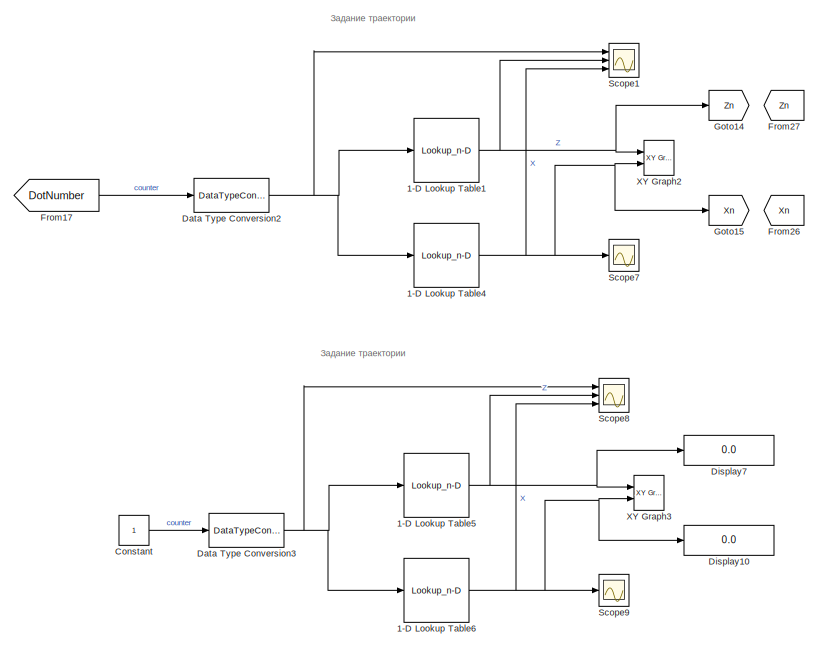
[diagram: root canvas - part 1/5, top right region]
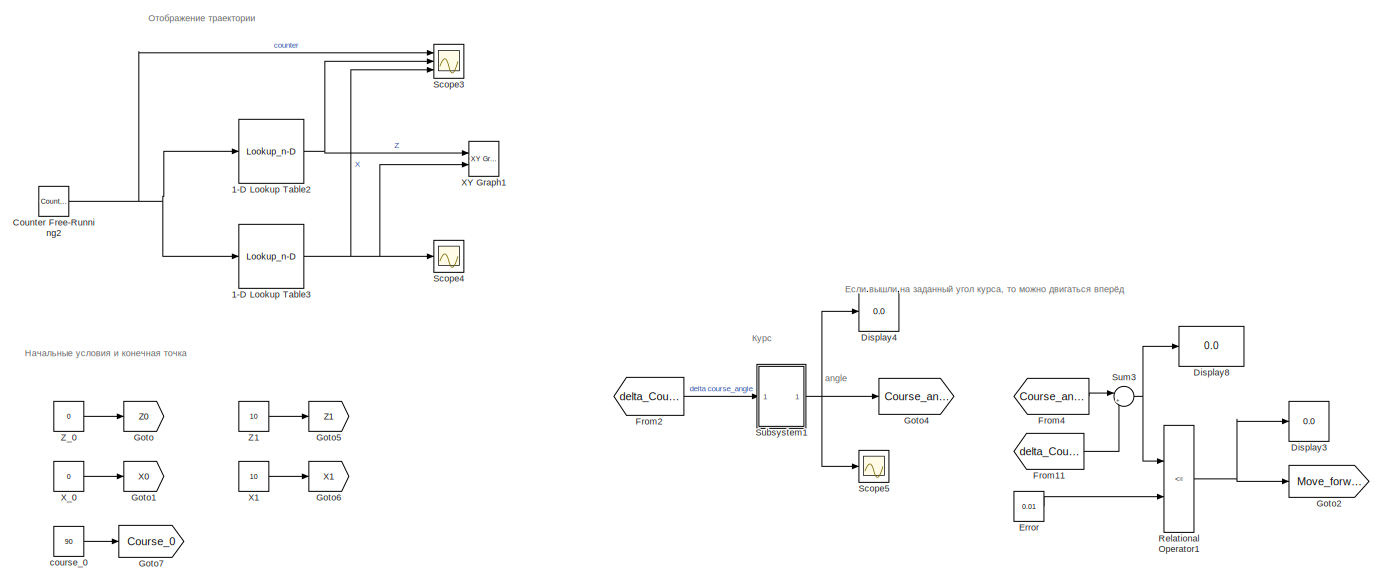
[diagram: root canvas - part 2/5, top left region]
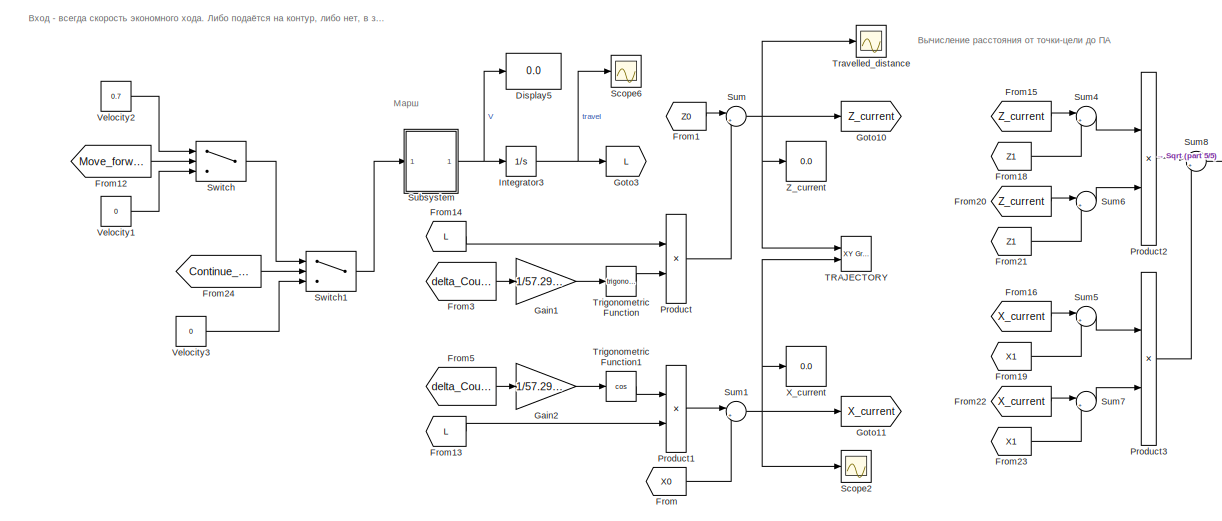
[diagram: root canvas - part 3/5, bottom center region]
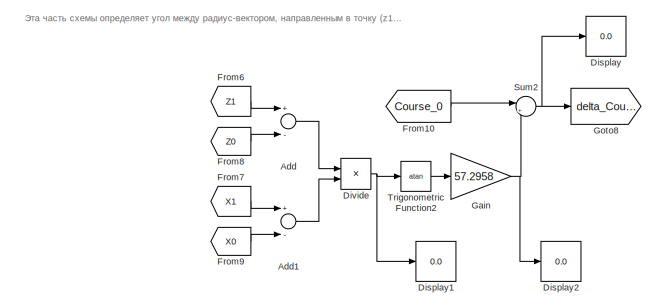
[diagram: root canvas - part 4/5, bottom left region]
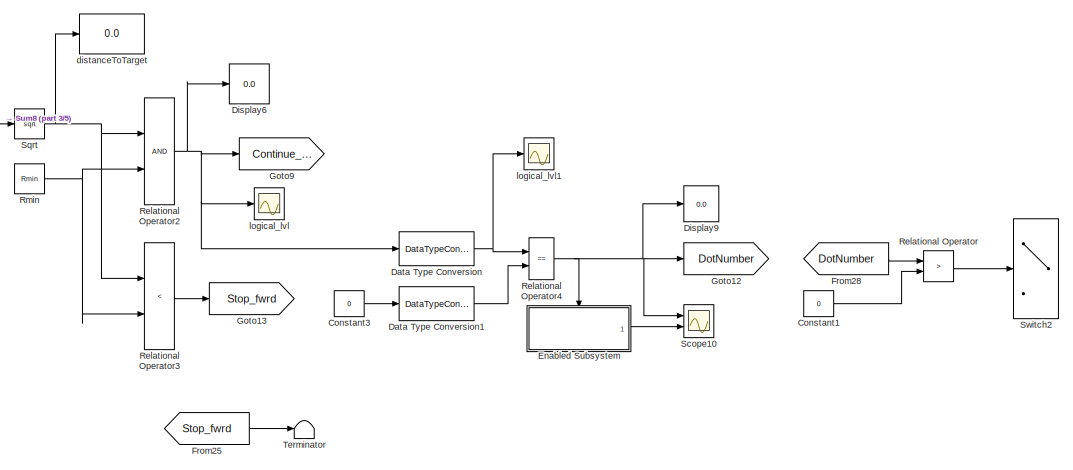
[diagram: root canvas - part 5/5, bottom right region]
MODEL slx_b03d26ef6ccf
KIND model
CONFIG AbsTol = auto
CONFIG EnableMultiTasking = off
CONFIG FixedStep = auto
CONFIG MaxStep = auto
CONFIG MinStep = auto
CONFIG RelTol = 1e-3
CONFIG SampleTimeConstraint = Unconstrained
CONFIG Solver = ode45
CONFIG SolverName = ode45
CONFIG StartTime = 0.0
CONFIG StopTime = 50
BLOCK [Lookup_n-D] 1-D Lookup Table1
  BreakpointsForDimension1 = [0:7]
  BreakpointsForDimension1DataTypeStr = uint8
  BreakpointsForDimension1FirstPoint = 0
  ExtrapMethod = Cubic spline
  InternalRulePriority = Speed
  InterpMethod = Flat
  NumberOfTableDimensions = 1
  OutDataTypeStr = double
  Ports = [1, 1]
  RemoveProtectionInput = on
  RndMeth = Zero
  Table = [0,0,L,L,2*L,2*L,3*L, 3*L]
  TableDataTypeStr = double
BLOCK [Lookup_n-D] 1-D Lookup Table2
  BreakpointsForDimension1 = [0:7]
  BreakpointsForDimension1DataTypeStr = uint8
  BreakpointsForDimension1FirstPoint = 0
  ExtrapMethod = Cubic spline
  InternalRulePriority = Speed
  InterpMethod = Flat
  NumberOfTableDimensions = 1
  OutDataTypeStr = double
  Ports = [1, 1]
  RemoveProtectionInput = on
  RndMeth = Zero
  Table = [0,0,L,L,2*L,2*L,3*L, 3*L]
  TableDataTypeStr = double
BLOCK [Lookup_n-D] 1-D Lookup Table3
  BreakpointsForDimension1 = [0:7]
  BreakpointsForDimension1DataTypeStr = int16
  InternalRulePriority = Speed
  InterpMethod = Flat
  NumberOfTableDimensions = 1
  OutDataTypeStr = double
  Ports = [1, 1]
  RemoveProtectionInput = on
  RndMeth = Zero
  Table = [0,25,25,0,0,25,25,0]
  TableDataTypeStr = double
BLOCK [Lookup_n-D] 1-D Lookup Table4
  BreakpointsForDimension1 = [0:7]
  BreakpointsForDimension1DataTypeStr = int16
  InternalRulePriority = Speed
  InterpMethod = Flat
  NumberOfTableDimensions = 1
  OutDataTypeStr = double
  Ports = [1, 1]
  RemoveProtectionInput = on
  RndMeth = Zero
  Table = [0,25,25,0,0,25,25,0]
  TableDataTypeStr = double
BLOCK [Lookup_n-D] 1-D Lookup Table5
  BreakpointsForDimension1 = [0:7]
  BreakpointsForDimension1DataTypeStr = uint8
  BreakpointsForDimension1FirstPoint = 0
  ExtrapMethod = Cubic spline
  InternalRulePriority = Speed
  InterpMethod = Flat
  NumberOfTableDimensions = 1
  OutDataTypeStr = double
  Ports = [1, 1]
  RemoveProtectionInput = on
  RndMeth = Zero
  Table = [0,0,L,L,2*L,2*L,3*L, 3*L]
  TableDataTypeStr = double
BLOCK [Lookup_n-D] 1-D Lookup Table6
  BreakpointsForDimension1 = [0:7]
  BreakpointsForDimension1DataTypeStr = int16
  InternalRulePriority = Speed
  InterpMethod = Flat
  NumberOfTableDimensions = 1
  OutDataTypeStr = double
  Ports = [1, 1]
  RemoveProtectionInput = on
  RndMeth = Zero
  Table = [0,25,25,0,0,25,25,0]
  TableDataTypeStr = double
BLOCK [Sum] Add
  InputSameDT = off
  Inputs = +-
  OutDataTypeStr = Inherit: Inherit via internal rule
  Ports = [2, 1]
  SaturateOnIntegerOverflow = off
BLOCK [Sum] Add1
  InputSameDT = off
  Inputs = +-
  OutDataTypeStr = Inherit: Inherit via internal rule
  Ports = [2, 1]
  SaturateOnIntegerOverflow = off
BLOCK [Constant] Constant
BLOCK [Constant] Constant1
  Value = 0
BLOCK [Constant] Constant3
  Value = 0
BLOCK [Reference] Counter Free-Running2  REF=simulink/Sources/Counter
Free-Running
  Ports = [0, 1]
  SourceBlock = simulink/Sources/Counter\nFree-Running
  SourceProductBaseCode = SL
  SourceProductName = Simulink
  SourceType = Counter Free-Running
BLOCK [DataTypeConversion] Data Type Conversion
  OutDataTypeStr = uint8
  RndMeth = Floor
  SaturateOnIntegerOverflow = off
BLOCK [DataTypeConversion] Data Type Conversion1
  OutDataTypeStr = uint8
  RndMeth = Floor
  SaturateOnIntegerOverflow = off
BLOCK [DataTypeConversion] Data Type Conversion2
  OutDataTypeStr = uint8
  RndMeth = Floor
  SaturateOnIntegerOverflow = off
BLOCK [DataTypeConversion] Data Type Conversion3
  OutDataTypeStr = uint8
  RndMeth = Floor
  SaturateOnIntegerOverflow = off
BLOCK [Display] Display
  Decimation = 1
  Ports = [1]
BLOCK [Display] Display1
  Decimation = 1
  Ports = [1]
BLOCK [Display] Display10
  Decimation = 1
  Ports = [1]
BLOCK [Display] Display2
  Decimation = 1
  Ports = [1]
BLOCK [Display] Display3
  Decimation = 1
  Ports = [1]
BLOCK [Display] Display4
  Decimation = 1
  Ports = [1]
BLOCK [Display] Display5
  Decimation = 1
  Ports = [1]
BLOCK [Display] Display6
  Decimation = 1
  Ports = [1]
BLOCK [Display] Display7
  Decimation = 1
  Ports = [1]
BLOCK [Display] Display8
  Decimation = 1
  Ports = [1]
BLOCK [Display] Display9
  Decimation = 1
  Ports = [1]
BLOCK [Product] Divide
  InputSameDT = off
  Inputs = */
  OutDataTypeStr = Inherit: Inherit via internal rule
  Ports = [2, 1]
  RndMeth = Floor
  SaturateOnIntegerOverflow = off
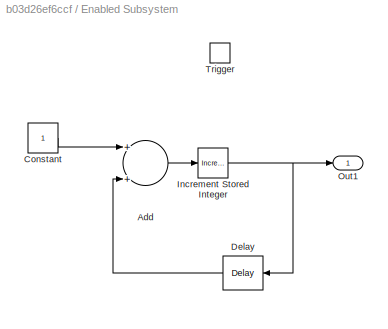
BLOCK [SubSystem] Enabled Subsystem
  Ports = [0, 1, 0, 1]
  RequestExecContextInheritance = off
  TreatAsAtomicUnit = on
  Variant = off
BLOCK [Sum] Enabled Subsystem/Add
  InputSameDT = off
  OutDataTypeStr = Inherit: Inherit via internal rule
  Ports = [2, 1]
  SaturateOnIntegerOverflow = off
BLOCK [Constant] Enabled Subsystem/Constant
BLOCK [Delay] Enabled Subsystem/Delay
  DelayLength = 1
  InitialCondition = 0
  InputPortMap = u0
  Ports = [1, 1]
BLOCK [Reference] Enabled Subsystem/Increment Stored Integer  REF=simulink/Additional Math
& Discrete/Additional Math:
Increment - Decrement/Increment
Stored Integer
  Ports = [1, 1]
  SourceBlock = simulink/Additional Math\n& Discrete/Additional Math:\nIncrement - Decrement/Increment\nStored Integer
  SourceProductBaseCode = SL
  SourceProductName = Simulink
  SourceType = Stored Integer Value Increment
BLOCK [Outport] Enabled Subsystem/Out1
  IconDisplay = Port number
BLOCK [TriggerPort] Enabled Subsystem/Trigger
  PortDimensions = 1
  Ports = []
  StatesWhenEnabling = held
  TriggerType = falling
  VariantControl = Variant
BLOCK [Constant] Error
  Value = 0.01
BLOCK [From] From
  GotoTag = X0
BLOCK [From] From1
  GotoTag = Z0
BLOCK [From] From10
  GotoTag = Course_0
BLOCK [From] From11
  GotoTag = delta_Course
BLOCK [From] From12
  GotoTag = Move_forward
BLOCK [From] From13
  GotoTag = L
BLOCK [From] From14
  GotoTag = L
BLOCK [From] From15
  GotoTag = Z_current
BLOCK [From] From16
  GotoTag = X_current
BLOCK [From] From17
  GotoTag = DotNumber
BLOCK [From] From18
  GotoTag = Z1
BLOCK [From] From19
  GotoTag = X1
BLOCK [From] From2
  GotoTag = delta_Course
BLOCK [From] From20
  GotoTag = Z_current
BLOCK [From] From21
  GotoTag = Z1
BLOCK [From] From22
  GotoTag = X_current
BLOCK [From] From23
  GotoTag = X1
BLOCK [From] From24
  GotoTag = Continue_fwrd
BLOCK [From] From25
  GotoTag = Stop_fwrd
BLOCK [From] From26
  GotoTag = Xn
BLOCK [From] From27
  GotoTag = Zn
BLOCK [From] From28
  GotoTag = DotNumber
BLOCK [From] From3
  GotoTag = delta_Course
BLOCK [From] From4
  GotoTag = Course_angle
BLOCK [From] From5
  GotoTag = delta_Course
BLOCK [From] From6
  GotoTag = Z1
BLOCK [From] From7
  GotoTag = X1
BLOCK [From] From8
  GotoTag = Z0
BLOCK [From] From9
  GotoTag = X0
BLOCK [Gain] Gain
  Gain = 57.2958
  OutDataTypeStr = Inherit: Inherit via internal rule
  ParamDataTypeStr = Inherit: Inherit via internal rule
  SaturateOnIntegerOverflow = off
BLOCK [Gain] Gain1
  Gain = 1/57.2958
  OutDataTypeStr = Inherit: Inherit via internal rule
  ParamDataTypeStr = Inherit: Inherit via internal rule
  SaturateOnIntegerOverflow = off
BLOCK [Gain] Gain2
  Gain = 1/57.2958
  OutDataTypeStr = Inherit: Inherit via internal rule
  ParamDataTypeStr = Inherit: Inherit via internal rule
  SaturateOnIntegerOverflow = off
BLOCK [Goto] Goto
  GotoTag = Z0
BLOCK [Goto] Goto1
  GotoTag = X0
BLOCK [Goto] Goto10
  GotoTag = Z_current
BLOCK [Goto] Goto11
  GotoTag = X_current
BLOCK [Goto] Goto12
  GotoTag = DotNumber
BLOCK [Goto] Goto13
  GotoTag = Stop_fwrd
BLOCK [Goto] Goto14
  GotoTag = Zn
BLOCK [Goto] Goto15
  GotoTag = Xn
BLOCK [Goto] Goto2
  GotoTag = Move_forward
BLOCK [Goto] Goto3
  GotoTag = L
BLOCK [Goto] Goto4
  GotoTag = Course_angle
BLOCK [Goto] Goto5
  GotoTag = Z1
BLOCK [Goto] Goto6
  GotoTag = X1
BLOCK [Goto] Goto7
  GotoTag = Course_0
BLOCK [Goto] Goto8
  GotoTag = delta_Course
BLOCK [Goto] Goto9
  GotoTag = Continue_fwrd
BLOCK [Integrator] Integrator3
  Ports = [1, 1]
BLOCK [Product] Product
  InputSameDT = off
  OutDataTypeStr = Inherit: Inherit via internal rule
  Ports = [2, 1]
  RndMeth = Floor
  SaturateOnIntegerOverflow = off
BLOCK [Product] Product1
  InputSameDT = off
  OutDataTypeStr = Inherit: Inherit via internal rule
  Ports = [2, 1]
  RndMeth = Floor
  SaturateOnIntegerOverflow = off
BLOCK [Product] Product2
  InputSameDT = off
  OutDataTypeStr = Inherit: Inherit via internal rule
  Ports = [2, 1]
  RndMeth = Floor
  SaturateOnIntegerOverflow = off
BLOCK [Product] Product3
  InputSameDT = off
  OutDataTypeStr = Inherit: Inherit via internal rule
  Ports = [2, 1]
  RndMeth = Floor
  SaturateOnIntegerOverflow = off
BLOCK [RelationalOperator] Relational Operator
  InputSameDT = off
  Operator = >
  OutDataTypeStr = boolean
  Ports = [2, 1]
  RndMeth = Simplest
BLOCK [RelationalOperator] Relational Operator1
  InputSameDT = off
  Operator = <=
  OutDataTypeStr = boolean
  Ports = [2, 1]
  RndMeth = Simplest
BLOCK [RelationalOperator] Relational Operator2
  InputSameDT = off
  OutDataTypeStr = boolean
  Ports = [2, 1]
  RndMeth = Simplest
BLOCK [RelationalOperator] Relational Operator3
  InputSameDT = off
  Operator = <
  OutDataTypeStr = boolean
  Ports = [2, 1]
  RndMeth = Simplest
BLOCK [RelationalOperator] Relational Operator4
  InputSameDT = off
  Operator = ==
  OutDataTypeStr = boolean
  Ports = [2, 1]
  RndMeth = Simplest
BLOCK [Constant] Rmin
  Value = Rmin
BLOCK [Scope] Scope1
  NumInputPorts = 3
  Ports = [3]
  ScopeSpecificationString = Simulink.scopes.TimeScopeBlockCfg('CurrentConfiguration', extmgr.ConfigurationSet(extmgr.Configuration('Core','General UI',true),extmgr.Configuration('Core','Source UI',true),extmgr.Configuration('Sources','WiredSimulink',true,'DataLoggingVariableName','ScopeData4'),extmgr.Configuration('Visuals','Time Domain',true,'SerializedDisplays',{struct('MinYLimReal','-3.125','MaxYLimReal','28.125','YLabelR...<+1492ch>
BLOCK [Scope] Scope10
  NumInputPorts = 2
  Ports = [2]
  ScopeSpecificationString = Simulink.scopes.TimeScopeBlockCfg('CurrentConfiguration', extmgr.ConfigurationSet(extmgr.Configuration('Core','General UI',true),extmgr.Configuration('Core','Source UI',true),extmgr.Configuration('Sources','WiredSimulink',true,'DataLoggingVariableName','ScopeData3'),extmgr.Configuration('Visuals','Time Domain',true,'SerializedDisplays',{struct('MinYLimReal','-0.125','MaxYLimReal','1.125','YLabelRe...<+1442ch>
BLOCK [Scope] Scope2
  NumInputPorts = 1
  Ports = [1]
  ScopeSpecificationString = Simulink.scopes.TimeScopeBlockCfg('CurrentConfiguration', extmgr.ConfigurationSet(extmgr.Configuration('Core','General UI',true),extmgr.Configuration('Core','Source UI',true),extmgr.Configuration('Sources','WiredSimulink',true,'DataLoggingVariableName','ScopeData2'),extmgr.Configuration('Visuals','Time Domain',true,'SerializedDisplays',{struct('MinYLimReal','-3.125','MaxYLimReal','28.125','YLabelR...<+1397ch>
BLOCK [Scope] Scope3
  NumInputPorts = 3
  Ports = [3]
  ScopeSpecificationString = Simulink.scopes.TimeScopeBlockCfg('CurrentConfiguration', extmgr.ConfigurationSet(extmgr.Configuration('Core','General UI',true),extmgr.Configuration('Core','Source UI',true),extmgr.Configuration('Sources','WiredSimulink',true,'DataLoggingVariableName','ScopeData3'),extmgr.Configuration('Visuals','Time Domain',true,'SerializedDisplays',{struct('MinYLimReal','-3.125','MaxYLimReal','28.125','YLabelR...<+1492ch>
BLOCK [Scope] Scope4
  NumInputPorts = 1
  Ports = [1]
  ScopeSpecificationString = Simulink.scopes.TimeScopeBlockCfg('CurrentConfiguration', extmgr.ConfigurationSet(extmgr.Configuration('Core','General UI',true),extmgr.Configuration('Core','Source UI',true),extmgr.Configuration('Sources','WiredSimulink',true,'DataLoggingVariableName','ScopeData4'),extmgr.Configuration('Visuals','Time Domain',true,'SerializedDisplays',{struct('MinYLimReal','-3.125','MaxYLimReal','28.125','YLabelR...<+1397ch>
BLOCK [Scope] Scope5
  NumInputPorts = 1
  Ports = [1]
  ScopeSpecificationString = Simulink.scopes.TimeScopeBlockCfg('CurrentConfiguration', extmgr.ConfigurationSet(extmgr.Configuration('Core','General UI',true),extmgr.Configuration('Core','Source UI',true),extmgr.Configuration('Sources','WiredSimulink',true,'DataLoggingVariableName','ScopeData1'),extmgr.Configuration('Visuals','Time Domain',true,'SerializedDisplays',{struct('MinYLimReal','-7.91942','MaxYLimReal','71.27476','YLa...<+1402ch>
BLOCK [Scope] Scope6
  NumInputPorts = 1
  Ports = [1]
  ScopeSpecificationString = Simulink.scopes.TimeScopeBlockCfg('CurrentConfiguration', extmgr.ConfigurationSet(extmgr.Configuration('Core','General UI',true),extmgr.Configuration('Core','Source UI',true),extmgr.Configuration('Sources','WiredSimulink',true,'DataLoggingVariableName','ScopeData2'),extmgr.Configuration('Visuals','Time Domain',true,'SerializedDisplays',{struct('MinYLimReal','-1.7891','MaxYLimReal','16.10192','YLab...<+1396ch>
BLOCK [Scope] Scope7
  NumInputPorts = 1
  Ports = [1]
  ScopeSpecificationString = Simulink.scopes.TimeScopeBlockCfg('CurrentConfiguration', extmgr.ConfigurationSet(extmgr.Configuration('Core','General UI',true),extmgr.Configuration('Core','Source UI',true),extmgr.Configuration('Sources','WiredSimulink',true,'DataLoggingVariableName','ScopeData5'),extmgr.Configuration('Visuals','Time Domain',true,'SerializedDisplays',{struct('MinYLimReal','-3.125','MaxYLimReal','28.125','YLabelR...<+1397ch>
BLOCK [Scope] Scope8
  NumInputPorts = 3
  Ports = [3]
  ScopeSpecificationString = Simulink.scopes.TimeScopeBlockCfg('CurrentConfiguration', extmgr.ConfigurationSet(extmgr.Configuration('Core','General UI',true),extmgr.Configuration('Core','Source UI',true),extmgr.Configuration('Sources','WiredSimulink',true,'DataLoggingVariableName','ScopeData6'),extmgr.Configuration('Visuals','Time Domain',true,'SerializedDisplays',{struct('MinYLimReal','-3.125','MaxYLimReal','28.125','YLabelR...<+1492ch>
BLOCK [Scope] Scope9
  NumInputPorts = 1
  Ports = [1]
  ScopeSpecificationString = Simulink.scopes.TimeScopeBlockCfg('CurrentConfiguration', extmgr.ConfigurationSet(extmgr.Configuration('Core','General UI',true),extmgr.Configuration('Core','Source UI',true),extmgr.Configuration('Sources','WiredSimulink',true,'DataLoggingVariableName','ScopeData7'),extmgr.Configuration('Visuals','Time Domain',true,'SerializedDisplays',{struct('MinYLimReal','-3.125','MaxYLimReal','28.125','YLabelR...<+1397ch>
BLOCK [Sqrt] Sqrt
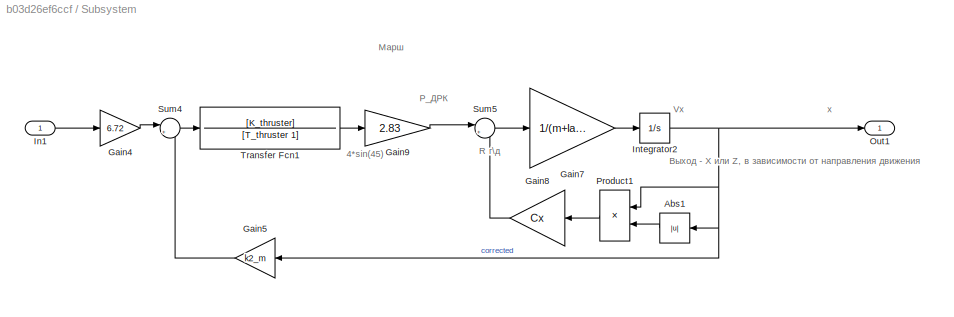
BLOCK [SubSystem] Subsystem
  Ports = [1, 1]
  RequestExecContextInheritance = off
  Variant = off
BLOCK [Abs] Subsystem/Abs1
  SaturateOnIntegerOverflow = off
BLOCK [Gain] Subsystem/Gain4
  Gain = 6.72
  OutDataTypeStr = Inherit: Inherit via internal rule
  ParamDataTypeStr = Inherit: Inherit via internal rule
  SaturateOnIntegerOverflow = off
BLOCK [Gain] Subsystem/Gain5
  Gain = k2_m
  OutDataTypeStr = Inherit: Inherit via internal rule
  ParamDataTypeStr = Inherit: Inherit via internal rule
  SaturateOnIntegerOverflow = off
BLOCK [Gain] Subsystem/Gain7
  Gain = 1/(m+lambda11)
  OutDataTypeStr = Inherit: Inherit via internal rule
  ParamDataTypeStr = Inherit: Inherit via internal rule
  SaturateOnIntegerOverflow = off
BLOCK [Gain] Subsystem/Gain8
  Gain = Cx
  OutDataTypeStr = Inherit: Inherit via internal rule
  ParamDataTypeStr = Inherit: Inherit via internal rule
  SaturateOnIntegerOverflow = off
BLOCK [Gain] Subsystem/Gain9
  Gain = 2.83
  OutDataTypeStr = Inherit: Inherit via internal rule
  ParamDataTypeStr = Inherit: Inherit via internal rule
  SaturateOnIntegerOverflow = off
BLOCK [Inport] Subsystem/In1
  IconDisplay = Port number
BLOCK [Integrator] Subsystem/Integrator2
  Ports = [1, 1]
BLOCK [Outport] Subsystem/Out1
  IconDisplay = Port number
BLOCK [Product] Subsystem/Product1
  InputSameDT = off
  OutDataTypeStr = Inherit: Inherit via internal rule
  Ports = [2, 1]
  RndMeth = Floor
  SaturateOnIntegerOverflow = off
BLOCK [Sum] Subsystem/Sum4
  IconShape = round
  InputSameDT = off
  Inputs = |+-
  OutDataTypeStr = Inherit: Inherit via internal rule
  Ports = [2, 1]
  SaturateOnIntegerOverflow = off
BLOCK [Sum] Subsystem/Sum5
  IconShape = round
  InputSameDT = off
  Inputs = |+-
  OutDataTypeStr = Inherit: Inherit via internal rule
  Ports = [2, 1]
  SaturateOnIntegerOverflow = off
BLOCK [TransferFcn] Subsystem/Transfer Fcn1
  Denominator = [T_thruster 1]
  Numerator = [K_thruster]
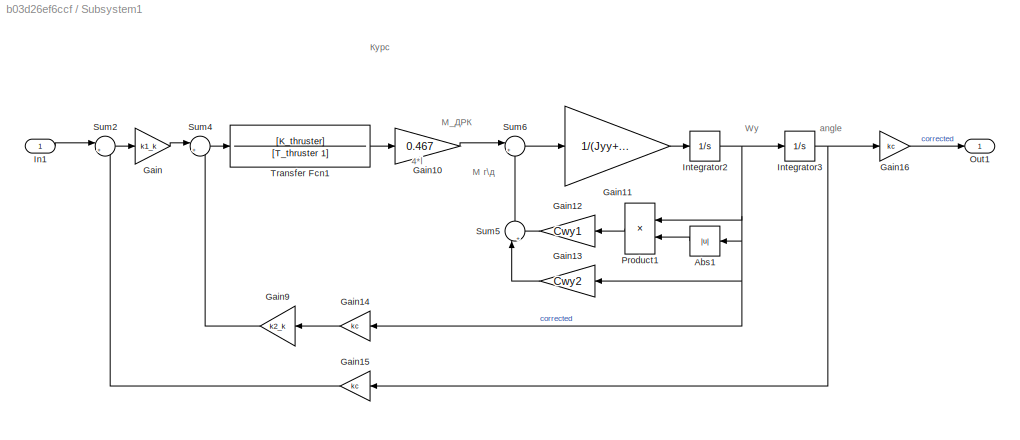
BLOCK [SubSystem] Subsystem1
  Ports = [1, 1]
  RequestExecContextInheritance = off
  Variant = off
BLOCK [Abs] Subsystem1/Abs1
  SaturateOnIntegerOverflow = off
BLOCK [Gain] Subsystem1/Gain
  Gain = k1_k
  OutDataTypeStr = Inherit: Inherit via internal rule
  ParamDataTypeStr = Inherit: Inherit via internal rule
  SaturateOnIntegerOverflow = off
BLOCK [Gain] Subsystem1/Gain10
  Gain = 0.467
  OutDataTypeStr = Inherit: Inherit via internal rule
  ParamDataTypeStr = Inherit: Inherit via internal rule
  SaturateOnIntegerOverflow = off
BLOCK [Gain] Subsystem1/Gain11
  Gain = 1/(Jyy+lambda55)
  OutDataTypeStr = Inherit: Inherit via internal rule
  ParamDataTypeStr = Inherit: Inherit via internal rule
  SaturateOnIntegerOverflow = off
BLOCK [Gain] Subsystem1/Gain12
  Gain = Cwy1
  OutDataTypeStr = Inherit: Inherit via internal rule
  ParamDataTypeStr = Inherit: Inherit via internal rule
  SaturateOnIntegerOverflow = off
BLOCK [Gain] Subsystem1/Gain13
  Gain = Cwy2
  OutDataTypeStr = Inherit: Inherit via internal rule
  ParamDataTypeStr = Inherit: Inherit via internal rule
  SaturateOnIntegerOverflow = off
BLOCK [Gain] Subsystem1/Gain14
  Gain = kc
  OutDataTypeStr = Inherit: Inherit via internal rule
  ParamDataTypeStr = Inherit: Inherit via internal rule
  SaturateOnIntegerOverflow = off
BLOCK [Gain] Subsystem1/Gain15
  Gain = kc
  OutDataTypeStr = Inherit: Inherit via internal rule
  ParamDataTypeStr = Inherit: Inherit via internal rule
  SaturateOnIntegerOverflow = off
BLOCK [Gain] Subsystem1/Gain16
  Gain = kc
  OutDataTypeStr = Inherit: Inherit via internal rule
  ParamDataTypeStr = Inherit: Inherit via internal rule
  SaturateOnIntegerOverflow = off
BLOCK [Gain] Subsystem1/Gain9
  Gain = k2_k
  OutDataTypeStr = Inherit: Inherit via internal rule
  ParamDataTypeStr = Inherit: Inherit via internal rule
  SaturateOnIntegerOverflow = off
BLOCK [Inport] Subsystem1/In1
  IconDisplay = Port number
BLOCK [Integrator] Subsystem1/Integrator2
  Ports = [1, 1]
BLOCK [Integrator] Subsystem1/Integrator3
  Ports = [1, 1]
BLOCK [Outport] Subsystem1/Out1
  IconDisplay = Port number
BLOCK [Product] Subsystem1/Product1
  InputSameDT = off
  OutDataTypeStr = Inherit: Inherit via internal rule
  Ports = [2, 1]
  RndMeth = Floor
  SaturateOnIntegerOverflow = off
BLOCK [Sum] Subsystem1/Sum2
  IconShape = round
  InputSameDT = off
  Inputs = |+-
  OutDataTypeStr = Inherit: Inherit via internal rule
  Ports = [2, 1]
  SaturateOnIntegerOverflow = off
BLOCK [Sum] Subsystem1/Sum4
  IconShape = round
  InputSameDT = off
  Inputs = |+-
  OutDataTypeStr = Inherit: Inherit via internal rule
  Ports = [2, 1]
  SaturateOnIntegerOverflow = off
BLOCK [Sum] Subsystem1/Sum5
  IconShape = round
  InputSameDT = off
  Inputs = |++
  OutDataTypeStr = Inherit: Inherit via internal rule
  Ports = [2, 1]
  SaturateOnIntegerOverflow = off
BLOCK [Sum] Subsystem1/Sum6
  IconShape = round
  InputSameDT = off
  Inputs = |+-
  OutDataTypeStr = Inherit: Inherit via internal rule
  Ports = [2, 1]
  SaturateOnIntegerOverflow = off
BLOCK [TransferFcn] Subsystem1/Transfer Fcn1
  Denominator = [T_thruster 1]
  Numerator = [K_thruster]
BLOCK [Sum] Sum
  IconShape = round
  InputSameDT = off
  Inputs = |++
  OutDataTypeStr = Inherit: Inherit via internal rule
  Ports = [2, 1]
  SaturateOnIntegerOverflow = off
BLOCK [Sum] Sum1
  IconShape = round
  InputSameDT = off
  Inputs = |++
  OutDataTypeStr = Inherit: Inherit via internal rule
  Ports = [2, 1]
  SaturateOnIntegerOverflow = off
BLOCK [Sum] Sum2
  IconShape = round
  InputSameDT = off
  Inputs = |+-
  OutDataTypeStr = Inherit: Inherit via internal rule
  Ports = [2, 1]
  SaturateOnIntegerOverflow = off
BLOCK [Sum] Sum3
  IconShape = round
  InputSameDT = off
  Inputs = |+-
  OutDataTypeStr = Inherit: Inherit via internal rule
  Ports = [2, 1]
  SaturateOnIntegerOverflow = off
BLOCK [Sum] Sum4
  IconShape = round
  InputSameDT = off
  Inputs = |+-
  OutDataTypeStr = Inherit: Inherit via internal rule
  Ports = [2, 1]
  SaturateOnIntegerOverflow = off
BLOCK [Sum] Sum5
  IconShape = round
  InputSameDT = off
  Inputs = |+-
  OutDataTypeStr = Inherit: Inherit via internal rule
  Ports = [2, 1]
  SaturateOnIntegerOverflow = off
BLOCK [Sum] Sum6
  IconShape = round
  InputSameDT = off
  Inputs = |+-
  OutDataTypeStr = Inherit: Inherit via internal rule
  Ports = [2, 1]
  SaturateOnIntegerOverflow = off
BLOCK [Sum] Sum7
  IconShape = round
  InputSameDT = off
  Inputs = |+-
  OutDataTypeStr = Inherit: Inherit via internal rule
  Ports = [2, 1]
  SaturateOnIntegerOverflow = off
BLOCK [Sum] Sum8
  IconShape = round
  InputSameDT = off
  Inputs = |++
  OutDataTypeStr = Inherit: Inherit via internal rule
  Ports = [2, 1]
  SaturateOnIntegerOverflow = off
BLOCK [Switch] Switch
  Criteria = u2 > Threshold
  InputSameDT = off
  SaturateOnIntegerOverflow = off
BLOCK [Switch] Switch1
  Criteria = u2 > Threshold
  InputSameDT = off
  SaturateOnIntegerOverflow = off
BLOCK [Switch] Switch2
  Criteria = u2 > Threshold
  InputSameDT = off
  SaturateOnIntegerOverflow = off
BLOCK [Reference] TRAJECTORY  REF=simulink/Sinks/XY Graph
  Ports = [2]
  SourceBlock = simulink/Sinks/XY Graph
  SourceProductBaseCode = SL
  SourceProductName = Simulink
  SourceType = XY scope.
BLOCK [Terminator] Terminator
BLOCK [Scope] Travelled_distance
  NumInputPorts = 1
  Ports = [1]
  ScopeSpecificationString = Simulink.scopes.TimeScopeBlockCfg('CurrentConfiguration', extmgr.ConfigurationSet(extmgr.Configuration('Core','General UI',true),extmgr.Configuration('Core','Source UI',true),extmgr.Configuration('Sources','WiredSimulink',true,'DataLoggingVariableName','ScopeData1'),extmgr.Configuration('Visuals','Time Domain',true,'SerializedDisplays',{struct('MinYLimReal','-1.26509','MaxYLimReal','11.38577','YLa...<+1395ch>
BLOCK [Trigonometry] Trigonometric Function
  Ports = [1, 1]
BLOCK [Trigonometry] Trigonometric Function1
  Operator = cos
  Ports = [1, 1]
BLOCK [Trigonometry] Trigonometric Function2
  Operator = atan
  OutputSignalType = real
  Ports = [1, 1]
BLOCK [Constant] Velocity1
  Value = 0
BLOCK [Constant] Velocity2
  Value = 0.7
BLOCK [Constant] Velocity3
  Value = 0
BLOCK [Constant] X1
  Value = 10
BLOCK [Reference] XY Graph1  REF=simulink/Sinks/XY Graph
  Ports = [2]
  SourceBlock = simulink/Sinks/XY Graph
  SourceProductBaseCode = SL
  SourceProductName = Simulink
  SourceType = XY scope.
BLOCK [Reference] XY Graph2  REF=simulink/Sinks/XY Graph
  Ports = [2]
  SourceBlock = simulink/Sinks/XY Graph
  SourceProductBaseCode = SL
  SourceProductName = Simulink
  SourceType = XY scope.
BLOCK [Reference] XY Graph3  REF=simulink/Sinks/XY Graph
  Ports = [2]
  SourceBlock = simulink/Sinks/XY Graph
  SourceProductBaseCode = SL
  SourceProductName = Simulink
  SourceType = XY scope.
BLOCK [Constant] X_0
  Value = 0
BLOCK [Display] X_current
  Decimation = 1
  Ports = [1]
BLOCK [Constant] Z1
  Value = 10
BLOCK [Constant] Z_0
  Value = 0
BLOCK [Display] Z_current
  Decimation = 1
  Ports = [1]
BLOCK [Constant] course_0 
  Value = 90
BLOCK [Display] distanceToTarget
  Decimation = 1
  Ports = [1]
BLOCK [Scope] logical_lvl
  NumInputPorts = 1
  Ports = [1]
  ScopeSpecificationString = Simulink.scopes.TimeScopeBlockCfg('CurrentConfiguration', extmgr.ConfigurationSet(extmgr.Configuration('Core','General UI',true),extmgr.Configuration('Core','Source UI',true),extmgr.Configuration('Sources','WiredSimulink',true,'DataLoggingVariableName','ScopeData1'),extmgr.Configuration('Visuals','Time Domain',true,'SerializedDisplays',{struct('MinYLimReal','-0.125','MaxYLimReal','1.125','YLabelRe...<+1397ch>
BLOCK [Scope] logical_lvl1
  NumInputPorts = 1
  Ports = [1]
  ScopeSpecificationString = Simulink.scopes.TimeScopeBlockCfg('CurrentConfiguration', extmgr.ConfigurationSet(extmgr.Configuration('Core','General UI',true),extmgr.Configuration('Core','Source UI',true),extmgr.Configuration('Sources','WiredSimulink',true,'DataLoggingVariableName','ScopeData2'),extmgr.Configuration('Visuals','Time Domain',true,'SerializedDisplays',{struct('MinYLimReal','-0.125','MaxYLimReal','1.125','YLabelRe...<+1396ch>
ANNOTATION (root): Курс
ANNOTATION (root): Марш
ANNOTATION (root): angle
ANNOTATION (root): Вход - всегда скорость экономного хода. Либо подаётся на контур, либо нет, в зависимости от близости к точке назначения
ANNOTATION (root): Вычисление расстояния от точки-цели до ПА
ANNOTATION (root): Если вышли на заданный угол курса, то можно двигаться вперёд
ANNOTATION (root): Задание траектории
ANNOTATION (root): Начальные условия и конечная точка
ANNOTATION (root): Отображение траектории
ANNOTATION (root): Эта часть схемы определяет угол между радиус-вектором, направленным в точку (z1, x1) и осью z
ANNOTATION Subsystem: 4*sin(45)
ANNOTATION Subsystem: Марш
ANNOTATION Subsystem: P_ДРК
ANNOTATION Subsystem: R г\д
ANNOTATION Subsystem: Vx
ANNOTATION Subsystem: x
ANNOTATION Subsystem: Выход - X или Z, в зависимости от направления движения
ANNOTATION Subsystem1: 4*l
ANNOTATION Subsystem1: Курс
ANNOTATION Subsystem1: M г\д
ANNOTATION Subsystem1: M_ДРК
ANNOTATION Subsystem1: Wy
ANNOTATION Subsystem1: angle
NET 1-D Lookup Table1:1 -> Goto14:1, Scope1:2, XY Graph2:1
NET 1-D Lookup Table2:1 -> Scope3:2, XY Graph1:1
NET 1-D Lookup Table3:1 -> Scope3:3, Scope4:1, XY Graph1:2
NET 1-D Lookup Table4:1 -> Goto15:1, Scope1:3, Scope7:1, XY Graph2:2
NET 1-D Lookup Table5:1 -> Display7:1, Scope8:2, XY Graph3:1
NET 1-D Lookup Table6:1 -> Display10:1, Scope8:3, Scope9:1, XY Graph3:2
LINE Add1:1 -> Divide:2
LINE Add:1 -> Divide:1
LINE Constant1:1 -> Relational Operator:2
LINE Constant3:1 -> Data Type Conversion1:1
LINE Constant:1 -> Data Type Conversion3:1
NET Counter Free-Running2:1 -> 1-D Lookup Table2:1, 1-D Lookup Table3:1, Scope3:1
LINE Data Type Conversion1:1 -> Relational Operator4:2
NET Data Type Conversion2:1 -> 1-D Lookup Table1:1, 1-D Lookup Table4:1, Scope1:1
NET Data Type Conversion3:1 -> 1-D Lookup Table5:1, 1-D Lookup Table6:1, Scope8:1
NET Data Type Conversion:1 -> Relational Operator4:1, logical_lvl1:1
NET Divide:1 -> Display1:1, Trigonometric Function2:1
LINE Enabled Subsystem/Add:1 -> Enabled Subsystem/Increment Stored Integer:1
LINE Enabled Subsystem/Constant:1 -> Enabled Subsystem/Add:1
LINE Enabled Subsystem/Delay:1 -> Enabled Subsystem/Add:2
NET Enabled Subsystem/Increment Stored Integer:1 -> Enabled Subsystem/Delay:1, Enabled Subsystem/Out1:1
LINE Enabled Subsystem:1 -> Scope10:2
LINE Error:1 -> Relational Operator1:2
LINE From10:1 -> Sum2:1
LINE From11:1 -> Sum3:2
LINE From12:1 -> Switch:2
LINE From13:1 -> Product1:2
LINE From14:1 -> Product:1
LINE From15:1 -> Sum4:1
LINE From16:1 -> Sum5:1
LINE From17:1 -> Data Type Conversion2:1
LINE From18:1 -> Sum4:2
LINE From19:1 -> Sum5:2
LINE From1:1 -> Sum:1
LINE From20:1 -> Sum6:1
LINE From21:1 -> Sum6:2
LINE From22:1 -> Sum7:1
LINE From23:1 -> Sum7:2
LINE From24:1 -> Switch1:2
LINE From25:1 -> Terminator:1
LINE From28:1 -> Relational Operator:1
LINE From2:1 -> Subsystem1:1
LINE From3:1 -> Gain1:1
LINE From4:1 -> Sum3:1
LINE From5:1 -> Gain2:1
LINE From6:1 -> Add:1
LINE From7:1 -> Add1:1
LINE From8:1 -> Add:2
LINE From9:1 -> Add1:2
LINE From:1 -> Sum1:2
LINE Gain1:1 -> Trigonometric Function:1
LINE Gain2:1 -> Trigonometric Function1:1
NET Gain:1 -> Display2:1, Sum2:2
NET Integrator3:1 -> Goto3:1, Scope6:1
LINE Product1:1 -> Sum1:1
LINE Product2:1 -> Sum8:1
LINE Product3:1 -> Sum8:2
LINE Product:1 -> Sum:2
NET Relational Operator1:1 -> Display3:1, Goto2:1
NET Relational Operator2:1 -> Data Type Conversion:1, Display6:1, Goto9:1, logical_lvl:1
LINE Relational Operator3:1 -> Goto13:1
NET Relational Operator4:1 -> Display9:1, Enabled Subsystem:trigger, Goto12:1, Scope10:1
LINE Relational Operator:1 -> Switch2:2
NET Rmin:1 -> Relational Operator2:2, Relational Operator3:2
NET Sqrt:1 -> Relational Operator2:1, Relational Operator3:1, distanceToTarget:1
LINE Subsystem/Abs1:1 -> Subsystem/Product1:2
LINE Subsystem/Gain4:1 -> Subsystem/Sum4:1
LINE Subsystem/Gain5:1 -> Subsystem/Sum4:2
LINE Subsystem/Gain7:1 -> Subsystem/Integrator2:1
LINE Subsystem/Gain8:1 -> Subsystem/Sum5:2
LINE Subsystem/Gain9:1 -> Subsystem/Sum5:1
LINE Subsystem/In1:1 -> Subsystem/Gain4:1
NET Subsystem/Integrator2:1 -> Subsystem/Abs1:1, Subsystem/Gain5:1, Subsystem/Out1:1, Subsystem/Product1:1
LINE Subsystem/Product1:1 -> Subsystem/Gain8:1
LINE Subsystem/Sum4:1 -> Subsystem/Transfer Fcn1:1
LINE Subsystem/Sum5:1 -> Subsystem/Gain7:1
LINE Subsystem/Transfer Fcn1:1 -> Subsystem/Gain9:1
LINE Subsystem1/Abs1:1 -> Subsystem1/Product1:2
LINE Subsystem1/Gain10:1 -> Subsystem1/Sum6:1
LINE Subsystem1/Gain11:1 -> Subsystem1/Integrator2:1
LINE Subsystem1/Gain12:1 -> Subsystem1/Sum5:2
LINE Subsystem1/Gain13:1 -> Subsystem1/Sum5:1
LINE Subsystem1/Gain14:1 -> Subsystem1/Gain9:1
LINE Subsystem1/Gain15:1 -> Subsystem1/Sum2:2
LINE Subsystem1/Gain16:1 -> Subsystem1/Out1:1
LINE Subsystem1/Gain9:1 -> Subsystem1/Sum4:2
LINE Subsystem1/Gain:1 -> Subsystem1/Sum4:1
LINE Subsystem1/In1:1 -> Subsystem1/Sum2:1
NET Subsystem1/Integrator2:1 -> Subsystem1/Abs1:1, Subsystem1/Gain13:1, Subsystem1/Gain14:1, Subsystem1/Integrator3:1, Subsystem1/Product1:1
NET Subsystem1/Integrator3:1 -> Subsystem1/Gain15:1, Subsystem1/Gain16:1
LINE Subsystem1/Product1:1 -> Subsystem1/Gain12:1
LINE Subsystem1/Sum2:1 -> Subsystem1/Gain:1
LINE Subsystem1/Sum4:1 -> Subsystem1/Transfer Fcn1:1
LINE Subsystem1/Sum5:1 -> Subsystem1/Sum6:2
LINE Subsystem1/Sum6:1 -> Subsystem1/Gain11:1
LINE Subsystem1/Transfer Fcn1:1 -> Subsystem1/Gain10:1
NET Subsystem1:1 -> Display4:1, Goto4:1, Scope5:1
NET Subsystem:1 -> Display5:1, Integrator3:1
NET Sum1:1 -> Goto11:1, Scope2:1, TRAJECTORY:2, X_current:1
NET Sum2:1 -> Display:1, Goto8:1
NET Sum3:1 -> Display8:1, Relational Operator1:1
LINE Sum4:1 -> Product2:1
LINE Sum5:1 -> Product3:1
LINE Sum6:1 -> Product2:2
LINE Sum7:1 -> Product3:2
LINE Sum8:1 -> Sqrt:1
NET Sum:1 -> Goto10:1, TRAJECTORY:1, Travelled_distance:1, Z_current:1
LINE Switch1:1 -> Subsystem:1
LINE Switch:1 -> Switch1:1
LINE Trigonometric Function1:1 -> Product1:1
LINE Trigonometric Function2:1 -> Gain:1
LINE Trigonometric Function:1 -> Product:2
LINE Velocity1:1 -> Switch:3
LINE Velocity2:1 -> Switch:1
LINE Velocity3:1 -> Switch1:3
LINE X1:1 -> Goto6:1
LINE X_0:1 -> Goto1:1
LINE Z1:1 -> Goto5:1
LINE Z_0:1 -> Goto:1
LINE course_0 :1 -> Goto7:1
note: NET lines group one-source signal fan-out (src -> all destinations, sorted); 1:1 wires keep LINE
